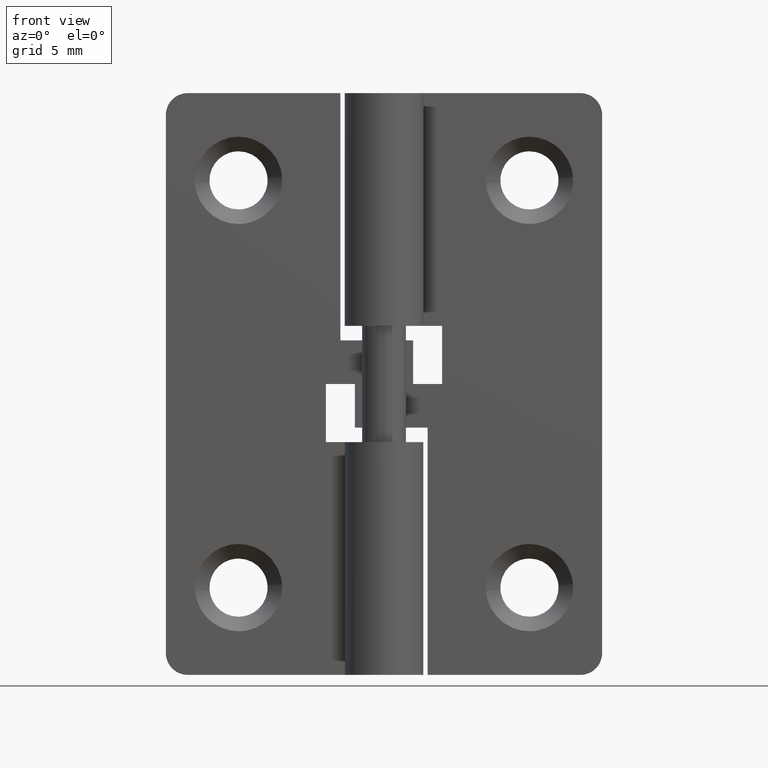
[diagram: clean part render]
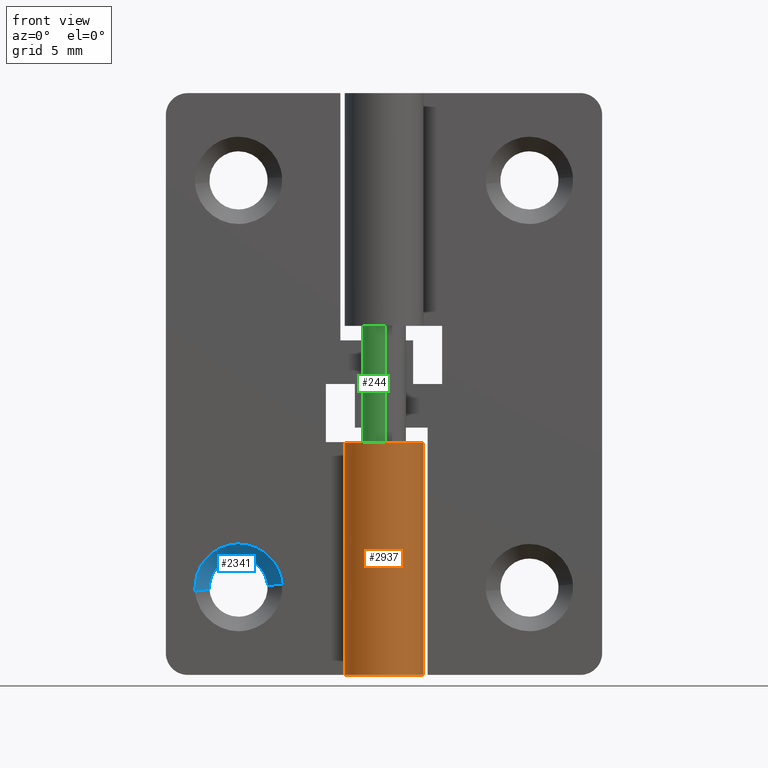
[diagram: same view with three faces highlighted in distinct colors, each labeled with its STEP entity id]
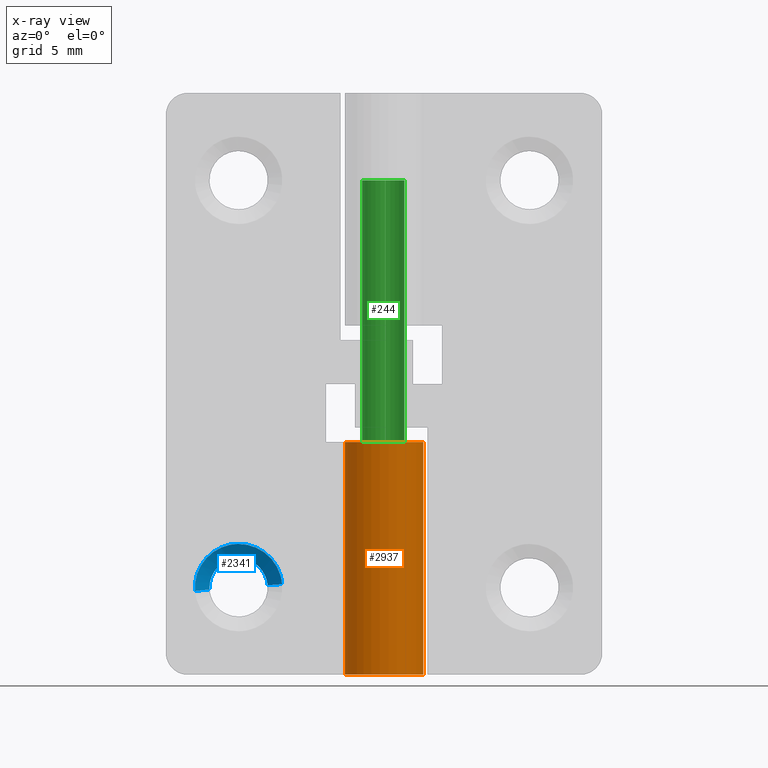
[diagram: x-ray of the same camera — body ghosted, the three highlighted faces saturated]
A machine part, front view with three faces highlighted in distinct colors.
The next image is the same camera in x-ray (body ghosted, the three faces saturated) — at least one of them is partly hidden behind the body in this view.
Their STEP definitions:

[orange] entity #2937 — the highlighted face is a freeform B-spline surface patch.
#2595=CARTESIAN_POINT('',(0.0,2.700001000000000,16.0));
#2596=VERTEX_POINT('',#2595);
#2637=CARTESIAN_POINT('',(-2.277609238344745,1.450000537037040,16.0));
#2638=VERTEX_POINT('',#2637);
#2644=CARTESIAN_POINT('',(0.0,2.700001000000000,16.0));
#2645=CARTESIAN_POINT('',(2.095110753459990,2.700001000000000,16.0));
#2646=CARTESIAN_POINT('',(2.615416060432463,0.670525339441350,16.0));
#2647=CARTESIAN_POINT('',(3.135721367404935,-1.358950321117301,16.0));
#2648=CARTESIAN_POINT('',(1.299038586801883,-2.366960952360805,16.0));
#2649=CARTESIAN_POINT('',(-0.537644193801170,-3.374971583604309,16.0));
#2650=CARTESIAN_POINT('',(-1.970202751724248,-1.846159938114572,16.0));
#2651=CARTESIAN_POINT('',(-3.402761309647326,-0.317348292624834,16.0));
#2652=CARTESIAN_POINT('',(-2.277609238344740,1.450000537037037,16.0));
#2660=(BOUNDED_CURVE()B_SPLINE_CURVE(2,(#2644,#2645,#2646,#2647,#2648,#2649,#2650,#2651,#2652),.UNSPECIFIED.,.F.,.U.)B_SPLINE_CURVE_WITH_KNOTS((3,2,2,2,3),(0.0,0.250000000000000,0.500000000000000,0.750000000000000,1.0),.UNSPECIFIED.)CURVE()GEOMETRIC_REPRESENTATION_ITEM()RATIONAL_B_SPLINE_CURVE((1.0,0.790045133626194,1.0,0.790045133626194,1.0,0.790045133626194,1.0,0.790045133626194,1.0))REPRESENTATION_ITEM(''));
#2661=EDGE_CURVE('',#2596,#2638,#2660,.T.);
#2755=CARTESIAN_POINT('',(-1.776357E-015,2.700001000000000,0.0));
#2756=VERTEX_POINT('',#2755);
#2762=CARTESIAN_POINT('',(-2.277609238344745,1.450000537037034,0.0));
#2763=VERTEX_POINT('',#2762);
#2764=CARTESIAN_POINT('',(0.0,2.700001000000000,0.0));
#2765=CARTESIAN_POINT('',(2.095110753459989,2.700001000000000,0.0));
#2766=CARTESIAN_POINT('',(2.615416060432462,0.670525339441352,0.0));
#2767=CARTESIAN_POINT('',(3.135721367404935,-1.358950321117296,0.0));
#2768=CARTESIAN_POINT('',(1.299038586801887,-2.366960952360802,0.0));
#2769=CARTESIAN_POINT('',(-0.537644193801164,-3.374971583604310,0.0));
#2770=CARTESIAN_POINT('',(-1.970202751724245,-1.846159938114575,0.0));
#2771=CARTESIAN_POINT('',(-3.402761309647326,-0.317348292624840,0.0));
#2772=CARTESIAN_POINT('',(-2.277609238344742,1.450000537037033,0.0));
#2780=(BOUNDED_CURVE()B_SPLINE_CURVE(2,(#2764,#2765,#2766,#2767,#2768,#2769,#2770,#2771,#2772),.UNSPECIFIED.,.F.,.U.)B_SPLINE_CURVE_WITH_KNOTS((3,2,2,2,3),(0.0,0.250000000000000,0.500000000000000,0.750000000000000,1.0),.UNSPECIFIED.)CURVE()GEOMETRIC_REPRESENTATION_ITEM()RATIONAL_B_SPLINE_CURVE((1.0,0.790045133626194,1.0,0.790045133626194,1.0,0.790045133626194,1.0,0.790045133626194,1.0))REPRESENTATION_ITEM(''));
#2781=EDGE_CURVE('',#2756,#2763,#2780,.T.);
#2894=CARTESIAN_POINT('',(-2.277609238344745,1.450000537037040,16.0));
#2895=CARTESIAN_POINT('',(-2.277609238344745,1.450000537037034,0.0));
#2896=QUASI_UNIFORM_CURVE('',1,(#2894,#2895),.UNSPECIFIED.,.F.,.U.);
#2897=EDGE_CURVE('',#2638,#2763,#2896,.T.);
#2905=CARTESIAN_POINT('',(-2.225141533405630,1.529297406103285,16.399999999999999));
#2906=CARTESIAN_POINT('',(-2.225141533405630,1.529297406103285,-0.410000000000000));
#2907=CARTESIAN_POINT('',(-4.147731869167291,-1.268088890868320,16.399999999999999));
#2908=CARTESIAN_POINT('',(-4.147731869167291,-1.268088890868320,-0.410000000000000));
#2909=CARTESIAN_POINT('',(-0.989553678656828,-2.512128363969034,16.399999999999999));
#2910=CARTESIAN_POINT('',(-0.989553678656828,-2.512128363969034,-0.410000000000000));
#2911=CARTESIAN_POINT('',(2.168624511853636,-3.756167837069747,16.399999999999999));
#2912=CARTESIAN_POINT('',(2.168624511853636,-3.756167837069747,-0.410000000000000));
#2913=CARTESIAN_POINT('',(2.670343820093038,-0.399085557859358,16.399999999999999));
#2914=CARTESIAN_POINT('',(2.670343820093038,-0.399085557859358,-0.410000000000000));
#2915=CARTESIAN_POINT('',(3.172063128332441,2.957996721351031,16.399999999999999));
#2916=CARTESIAN_POINT('',(3.172063128332441,2.957996721351031,-0.410000000000000));
#2917=CARTESIAN_POINT('',(-0.211839636924280,2.691677797996778,16.399999999999999));
#2918=CARTESIAN_POINT('',(-0.211839636924280,2.691677797996778,-0.410000000000000));
#2926=(BOUNDED_SURFACE()B_SPLINE_SURFACE(1,2,((#2905,#2907,#2909,#2911,#2913,#2915,#2917),(#2906,#2908,#2910,#2912,#2914,#2916,#2918)),.UNSPECIFIED.,.F.,.F.,.U.)B_SPLINE_SURFACE_WITH_KNOTS((2,2),(3,2,2,3),(0.0,16.809999999999999),(0.0,5.209303530200725,10.418607060401451,15.627910590602170),.UNSPECIFIED.)GEOMETRIC_REPRESENTATION_ITEM()RATIONAL_B_SPLINE_SURFACE(((1.0,0.622514636637620,1.0,0.622514636637620,1.0,0.622514636637620,1.0),(1.0,0.622514636637620,1.0,0.622514636637620,1.0,0.622514636637620,1.0)))REPRESENTATION_ITEM('')SURFACE());
#2927=ORIENTED_EDGE('',*,*,#2661,.T.);
#2928=ORIENTED_EDGE('',*,*,#2897,.T.);
#2929=ORIENTED_EDGE('',*,*,#2781,.F.);
#2930=CARTESIAN_POINT('',(0.0,2.700001000000000,16.0));
#2931=CARTESIAN_POINT('',(-1.776357E-015,2.700001000000000,0.0));
#2932=QUASI_UNIFORM_CURVE('',1,(#2930,#2931),.UNSPECIFIED.,.F.,.U.);
#2933=EDGE_CURVE('',#2596,#2756,#2932,.T.);
#2934=ORIENTED_EDGE('',*,*,#2933,.F.);
#2935=EDGE_LOOP('',(#2927,#2928,#2929,#2934));
#2936=FACE_OUTER_BOUND('',#2935,.T.);
#2937=ADVANCED_FACE('',(#2936),#2926,.T.);

[blue] entity #2341 — the highlighted face is a freeform B-spline surface patch.
#2146=CARTESIAN_POINT('',(-11.996269607212870,2.499999999999739,5.877903090464221));
#2147=VERTEX_POINT('',#2146);
#2191=CARTESIAN_POINT('',(-8.006165332516021,2.499999999955601,6.156918191796287));
#2192=VERTEX_POINT('',#2191);
#2208=CARTESIAN_POINT('',(-10.0,2.500000000000000,7.999999999999900));
#2209=VERTEX_POINT('',#2208);
#2210=CARTESIAN_POINT('',(-10.0,2.500000000000000,7.999999999999900));
#2211=CARTESIAN_POINT('',(-8.151219017310881,2.500000000000000,7.999999999999901));
#2212=CARTESIAN_POINT('',(-8.006165332516021,2.499999999955601,6.156918191796287));
#2220=(BOUNDED_CURVE()B_SPLINE_CURVE(2,(#2210,#2211,#2212),.UNSPECIFIED.,.F.,.U.)B_SPLINE_CURVE_WITH_KNOTS((3,3),(0.0,0.236331300574781),.UNSPECIFIED.)CURVE()GEOMETRIC_REPRESENTATION_ITEM()RATIONAL_B_SPLINE_CURVE((1.0,0.723120658673131,0.969723356050804))REPRESENTATION_ITEM(''));
#2221=EDGE_CURVE('',#2209,#2192,#2220,.T.);
#2223=CARTESIAN_POINT('',(-11.996269607212861,2.499999999999739,5.877903090464221));
#2224=CARTESIAN_POINT('',(-12.000000000000002,2.500000000000000,5.938894558407418));
#2225=CARTESIAN_POINT('',(-12.0,2.500000000000000,5.999999999999901));
#2226=CARTESIAN_POINT('',(-12.0,2.500000000000000,7.999999999999901));
#2227=CARTESIAN_POINT('',(-10.0,2.500000000000000,7.999999999999900));
#2235=(BOUNDED_CURVE()B_SPLINE_CURVE(2,(#2223,#2224,#2225,#2226,#2227),.UNSPECIFIED.,.F.,.U.)B_SPLINE_CURVE_WITH_KNOTS((3,2,3),(0.739332976895577,0.750000000000000,1.0),.UNSPECIFIED.)CURVE()GEOMETRIC_REPRESENTATION_ITEM()RATIONAL_B_SPLINE_CURVE((0.976072073078677,0.987502805071152,1.0,0.707106781186548,1.0))REPRESENTATION_ITEM(''));
#2236=EDGE_CURVE('',#2147,#2209,#2235,.T.);
#2275=CARTESIAN_POINT('',(-8.031088265877074,2.525000000000000,6.154956714062395));
#2276=CARTESIAN_POINT('',(-8.186044979939569,2.525000000000000,8.123868448185322));
#2277=CARTESIAN_POINT('',(-10.154956714062500,2.525000000000000,7.968911734122827));
#2278=CARTESIAN_POINT('',(-12.123868448185421,2.525000000000000,7.813955020060332));
#2279=CARTESIAN_POINT('',(-11.968911734122930,2.525000000000000,5.845043285937406));
#2280=CARTESIAN_POINT('',(-6.983701992123706,1.474375000000000,6.237387801511463));
#2281=CARTESIAN_POINT('',(-7.221089793635269,1.474375000000000,9.253685809387758));
#2282=CARTESIAN_POINT('',(-10.237387801511559,1.474375000000000,9.016298007876195));
#2283=CARTESIAN_POINT('',(-13.253685809387857,1.474375000000000,8.778910206364632));
#2284=CARTESIAN_POINT('',(-13.016298007876291,1.474375000000000,5.762612198488338));
#2292=(BOUNDED_SURFACE()B_SPLINE_SURFACE(2,1,((#2275,#2280),(#2276,#2281),(#2277,#2282),(#2278,#2283),(#2279,#2284)),.UNSPECIFIED.,.F.,.F.,.U.)B_SPLINE_SURFACE_WITH_KNOTS((3,2,3),(2,2),(0.0,5.013019638620381,10.026039277240759),(0.0,1.0),.UNSPECIFIED.)GEOMETRIC_REPRESENTATION_ITEM()RATIONAL_B_SPLINE_SURFACE(((1.0,1.0),(0.707106781186548,0.707106781186548),(1.0,1.0),(0.707106781186548,0.707106781186548),(1.0,1.0)))REPRESENTATION_ITEM('')SURFACE());
#2293=ORIENTED_EDGE('',*,*,#2221,.T.);
#2294=CARTESIAN_POINT('',(-7.009247998788410,1.499999999969401,6.235377287418338));
#2295=VERTEX_POINT('',#2294);
#2296=CARTESIAN_POINT('',(-8.006165332516021,2.499999999955601,6.156918191796287));
#2297=CARTESIAN_POINT('',(-7.009247998788410,1.499999999969401,6.235377287418338));
#2298=QUASI_UNIFORM_CURVE('',1,(#2296,#2297),.UNSPECIFIED.,.F.,.U.);
#2299=EDGE_CURVE('',#2192,#2295,#2298,.T.);
#2300=ORIENTED_EDGE('',*,*,#2299,.T.);
#2301=CARTESIAN_POINT('',(-10.0,1.500000000000000,8.999999999999901));
#2302=VERTEX_POINT('',#2301);
#2303=CARTESIAN_POINT('',(-10.0,1.500000000000000,8.999999999999901));
#2304=CARTESIAN_POINT('',(-7.226828525457882,1.500000000000000,8.999999999999901));
#2305=CARTESIAN_POINT('',(-7.009247998788410,1.499999999969401,6.235377287418338));
#2313=(BOUNDED_CURVE()B_SPLINE_CURVE(2,(#2303,#2304,#2305),.UNSPECIFIED.,.F.,.U.)B_SPLINE_CURVE_WITH_KNOTS((3,3),(0.0,0.236331300606114),.UNSPECIFIED.)CURVE()GEOMETRIC_REPRESENTATION_ITEM()RATIONAL_B_SPLINE_CURVE((1.0,0.723120658636423,0.969723356116193))REPRESENTATION_ITEM(''));
#2314=EDGE_CURVE('',#2302,#2295,#2313,.T.);
#2315=ORIENTED_EDGE('',*,*,#2314,.F.);
#2316=CARTESIAN_POINT('',(-12.990752001211590,1.499999999969401,5.764622712581463));
#2317=VERTEX_POINT('',#2316);
#2318=CARTESIAN_POINT('',(-12.990752001211593,1.499999999969401,5.764622712581463));
#2319=CARTESIAN_POINT('',(-12.999999999999998,1.500000000000000,5.882129678743312));
#2320=CARTESIAN_POINT('',(-13.0,1.500000000000000,5.999999999999901));
#2321=CARTESIAN_POINT('',(-13.000000000000004,1.500000000000000,8.999999999999901));
#2322=CARTESIAN_POINT('',(-10.0,1.500000000000000,8.999999999999901));
#2330=(BOUNDED_CURVE()B_SPLINE_CURVE(2,(#2318,#2319,#2320,#2321,#2322),.UNSPECIFIED.,.F.,.U.)B_SPLINE_CURVE_WITH_KNOTS((3,2,3),(0.736331300606114,0.750000000000000,1.0),.UNSPECIFIED.)CURVE()GEOMETRIC_REPRESENTATION_ITEM()RATIONAL_B_SPLINE_CURVE((0.969723356116193,0.983986122550125,1.0,0.707106781186548,1.0))REPRESENTATION_ITEM(''));
#2331=EDGE_CURVE('',#2317,#2302,#2330,.T.);
#2332=ORIENTED_EDGE('',*,*,#2331,.F.);
#2333=CARTESIAN_POINT('',(-11.996269607212870,2.499999999999739,5.877903090464221));
#2334=CARTESIAN_POINT('',(-12.990752001211590,1.499999999969401,5.764622712581463));
#2335=QUASI_UNIFORM_CURVE('',1,(#2333,#2334),.UNSPECIFIED.,.F.,.U.);
#2336=EDGE_CURVE('',#2147,#2317,#2335,.T.);
#2337=ORIENTED_EDGE('',*,*,#2336,.F.);
#2338=ORIENTED_EDGE('',*,*,#2236,.T.);
#2339=EDGE_LOOP('',(#2293,#2300,#2315,#2332,#2337,#2338));
#2340=FACE_OUTER_BOUND('',#2339,.T.);
#2341=ADVANCED_FACE('',(#2340),#2292,.F.);

[green] entity #244 — the highlighted face is a freeform B-spline surface patch.
#62=CARTESIAN_POINT('',(1.404215368152814,0.527426961620090,34.0));
#63=VERTEX_POINT('',#62);
#79=CARTESIAN_POINT('',(0.091572809315440,-1.497202197632645,33.999999999995737));
#80=VERTEX_POINT('',#79);
#94=CARTESIAN_POINT('',(0.091572809322926,-1.497202197631653,8.326673E-016));
#95=VERTEX_POINT('',#94);
#96=CARTESIAN_POINT('',(0.091572809315440,-1.497202197632645,33.999999999995737));
#97=CARTESIAN_POINT('',(0.091572809322926,-1.497202197631653,8.326673E-016));
#98=QUASI_UNIFORM_CURVE('',1,(#96,#97),.UNSPECIFIED.,.F.,.U.);
#99=EDGE_CURVE('',#80,#95,#98,.T.);
#116=CARTESIAN_POINT('',(1.404215368153057,0.527426961619445,7.962767E-016));
#117=VERTEX_POINT('',#116);
#131=CARTESIAN_POINT('',(1.404215368152814,0.527426961620090,34.0));
#132=CARTESIAN_POINT('',(1.404215368153057,0.527426961619445,7.962767E-016));
#133=QUASI_UNIFORM_CURVE('',1,(#131,#132),.UNSPECIFIED.,.F.,.U.);
#134=EDGE_CURVE('',#63,#117,#133,.T.);
#139=CARTESIAN_POINT('',(0.091572809302292,-1.497202197632915,34.850000000000009));
#140=CARTESIAN_POINT('',(-1.405629388330622,-1.588775006935207,34.850000000000009));
#141=CARTESIAN_POINT('',(-1.497202197632915,-0.091572809302292,34.850000000000009));
#142=CARTESIAN_POINT('',(-1.588775006935207,1.405629388330622,34.850000000000009));
#143=CARTESIAN_POINT('',(-0.091572809302292,1.497202197632915,34.850000000000009));
#144=CARTESIAN_POINT('',(1.014554372704675,1.564855834304132,34.850000000000001));
#145=CARTESIAN_POINT('',(1.404215368165093,0.527426961587399,34.850000000000016));
#146=CARTESIAN_POINT('',(0.091572809302292,-1.497202197632915,-0.871250000000003));
#147=CARTESIAN_POINT('',(-1.405629388330622,-1.588775006935207,-0.871250000000003));
#148=CARTESIAN_POINT('',(-1.497202197632915,-0.091572809302292,-0.871250000000003));
#149=CARTESIAN_POINT('',(-1.588775006935207,1.405629388330622,-0.871250000000003));
#150=CARTESIAN_POINT('',(-0.091572809302292,1.497202197632915,-0.871250000000003));
#151=CARTESIAN_POINT('',(1.014554372704675,1.564855834304132,-0.871250000000003));
#152=CARTESIAN_POINT('',(1.404215368165093,0.527426961587399,-0.871250000000003));
#160=(BOUNDED_SURFACE()B_SPLINE_SURFACE(2,1,((#139,#146),(#140,#147),(#141,#148),(#142,#149),(#143,#150),(#144,#151),(#145,#152)),.UNSPECIFIED.,.F.,.F.,.U.)B_SPLINE_SURFACE_WITH_KNOTS((3,2,2,3),(2,2),(0.0,1.570796326794897,3.141592653589793,4.398229715025710),(0.0,35.721250000000012),.UNSPECIFIED.)GEOMETRIC_REPRESENTATION_ITEM()RATIONAL_B_SPLINE_SURFACE(((1.0,1.0),(0.707106781186548,0.707106781186548),(1.0,1.0),(0.707106781186548,0.707106781186548),(1.0,1.0),(0.765685424949238,0.765685424949238),(0.906274169979695,0.906274169979695)))REPRESENTATION_ITEM('')SURFACE());
#161=CARTESIAN_POINT('',(-0.177048556683463,1.489514152252257,34.000001865079312));
#162=VERTEX_POINT('',#161);
#163=CARTESIAN_POINT('',(-0.177048556683463,1.489514152252257,34.000001865079312));
#164=CARTESIAN_POINT('',(-0.088834741902992,1.499999554474029,34.000001794634656));
#165=CARTESIAN_POINT('',(0.000000050700994,1.499999573456887,34.000001718163730));
#166=CARTESIAN_POINT('',(1.038914417807083,1.499999795459577,34.000000823843571));
#167=CARTESIAN_POINT('',(1.404215368152814,0.527426961620090,34.000000000000007));
#175=(BOUNDED_CURVE()B_SPLINE_CURVE(2,(#163,#164,#165,#166,#167),.UNSPECIFIED.,.F.,.U.)B_SPLINE_CURVE_WITH_KNOTS((3,2,3),(0.229562784431783,0.250000000000000,0.440284170891555),.UNSPECIFIED.)CURVE()GEOMETRIC_REPRESENTATION_ITEM()RATIONAL_B_SPLINE_CURVE((0.956027363597147,0.976056312594562,1.0,0.777068226793294,0.893499554626765))REPRESENTATION_ITEM(''));
#176=EDGE_CURVE('',#162,#63,#175,.T.);
#177=ORIENTED_EDGE('',*,*,#176,.T.);
#178=ORIENTED_EDGE('',*,*,#134,.T.);
#179=CARTESIAN_POINT('',(-1.500000000000115,0.0,0.0));
#180=VERTEX_POINT('',#179);
#181=CARTESIAN_POINT('',(-1.500000000000115,0.0,0.0));
#182=CARTESIAN_POINT('',(-1.500000000000115,1.500000000000115,0.0));
#183=CARTESIAN_POINT('',(0.0,1.500000000000115,0.0));
#184=CARTESIAN_POINT('',(1.038914393491056,1.500000000000116,0.0));
#185=CARTESIAN_POINT('',(1.404215368153056,0.527426961619445,7.962767E-016));
#193=(BOUNDED_CURVE()B_SPLINE_CURVE(2,(#181,#182,#183,#184,#185),.UNSPECIFIED.,.F.,.U.)B_SPLINE_CURVE_WITH_KNOTS((3,2,3),(0.0,0.250000000000000,0.440284170891700),.UNSPECIFIED.)CURVE()GEOMETRIC_REPRESENTATION_ITEM()RATIONAL_B_SPLINE_CURVE((1.0,0.707106781186548,1.0,0.777068226793123,0.893499554626943))REPRESENTATION_ITEM(''));
#194=EDGE_CURVE('',#180,#117,#193,.T.);
#195=ORIENTED_EDGE('',*,*,#194,.F.);
#196=CARTESIAN_POINT('',(0.091572809322926,-1.497202197631653,8.326673E-016));
#197=CARTESIAN_POINT('',(0.045829144968579,-1.500000000000116,0.0));
#198=CARTESIAN_POINT('',(0.0,-1.500000000000115,0.0));
#199=CARTESIAN_POINT('',(-1.500000000000115,-1.500000000000115,0.0));
#200=CARTESIAN_POINT('',(-1.500000000000115,0.0,0.0));
#208=(BOUNDED_CURVE()B_SPLINE_CURVE(2,(#196,#197,#198,#199,#200),.UNSPECIFIED.,.F.,.U.)B_SPLINE_CURVE_WITH_KNOTS((3,2,3),(0.739332962237212,0.750000000000000,1.0),.UNSPECIFIED.)CURVE()GEOMETRIC_REPRESENTATION_ITEM()RATIONAL_B_SPLINE_CURVE((0.976072041663009,0.987502787897810,1.0,0.707106781186548,1.0))REPRESENTATION_ITEM(''));
#209=EDGE_CURVE('',#95,#180,#208,.T.);
#210=ORIENTED_EDGE('',*,*,#209,.F.);
#211=ORIENTED_EDGE('',*,*,#99,.F.);
#212=CARTESIAN_POINT('',(-1.500000000000115,0.0,34.0));
#213=VERTEX_POINT('',#212);
#214=CARTESIAN_POINT('',(0.091572809315440,-1.497202197632645,33.999999999995737));
#215=CARTESIAN_POINT('',(0.045829144974191,-1.500000000000116,34.0));
#216=CARTESIAN_POINT('',(0.0,-1.500000000000115,34.0));
#217=CARTESIAN_POINT('',(-1.500000000000115,-1.500000000000115,34.000000000000007));
#218=CARTESIAN_POINT('',(-1.500000000000115,0.0,34.0));
#226=(BOUNDED_CURVE()B_SPLINE_CURVE(2,(#214,#215,#216,#217,#218),.UNSPECIFIED.,.F.,.U.)B_SPLINE_CURVE_WITH_KNOTS((3,2,3),(0.739332962235922,0.750000000000000,1.0),.UNSPECIFIED.)CURVE()GEOMETRIC_REPRESENTATION_ITEM()RATIONAL_B_SPLINE_CURVE((0.976072041660244,0.987502787896299,1.0,0.707106781186548,1.0))REPRESENTATION_ITEM(''));
#227=EDGE_CURVE('',#80,#213,#226,.T.);
#228=ORIENTED_EDGE('',*,*,#227,.T.);
#229=CARTESIAN_POINT('',(-1.500000000000115,0.0,34.0));
#230=CARTESIAN_POINT('',(-1.499999972482490,1.332264025644714,34.000000932539649));
#231=CARTESIAN_POINT('',(-0.177048556683463,1.489514152252257,34.000001865079312));
#239=(BOUNDED_CURVE()B_SPLINE_CURVE(2,(#229,#230,#231),.UNSPECIFIED.,.F.,.U.)B_SPLINE_CURVE_WITH_KNOTS((3,3),(0.0,0.229562784431783),.UNSPECIFIED.)CURVE()GEOMETRIC_REPRESENTATION_ITEM()RATIONAL_B_SPLINE_CURVE((1.0,0.731050468591986,0.956027363597147))REPRESENTATION_ITEM(''));
#240=EDGE_CURVE('',#213,#162,#239,.T.);
#241=ORIENTED_EDGE('',*,*,#240,.T.);
#242=EDGE_LOOP('',(#177,#178,#195,#210,#211,#228,#241));
#243=FACE_OUTER_BOUND('',#242,.T.);
#244=ADVANCED_FACE('',(#243),#160,.T.);